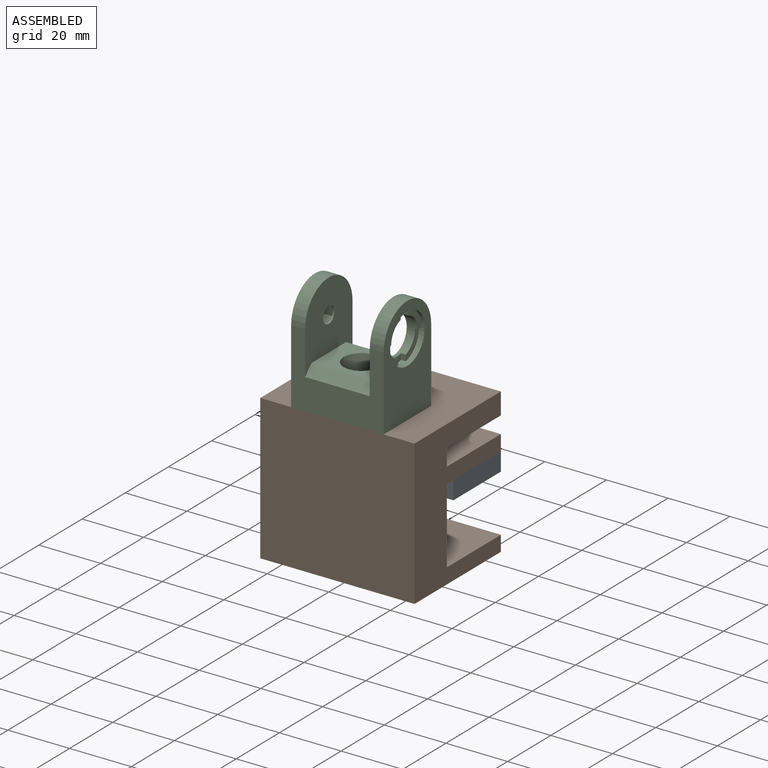
[diagram: assembled view]
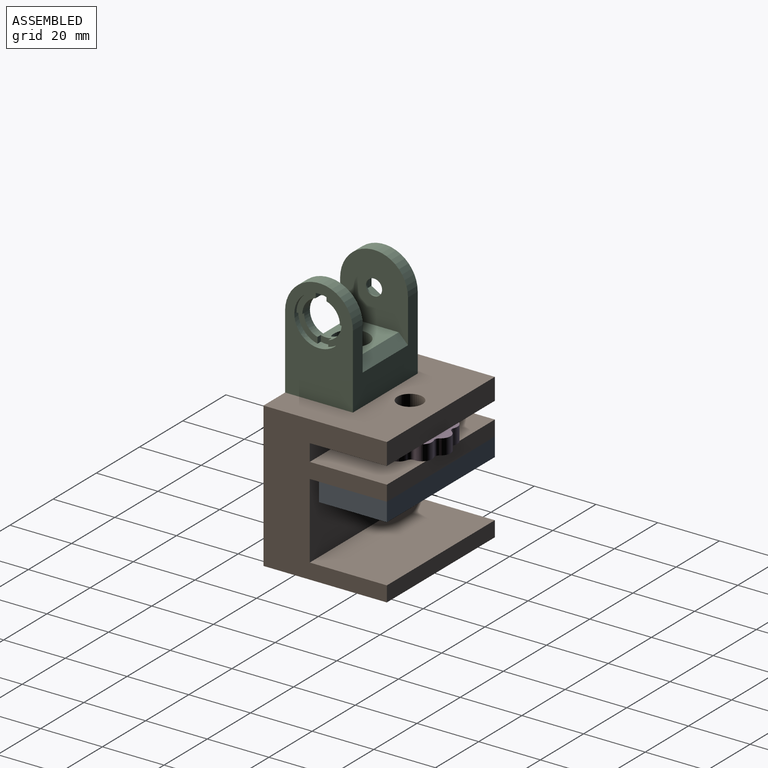
[diagram: assembled view, second angle]
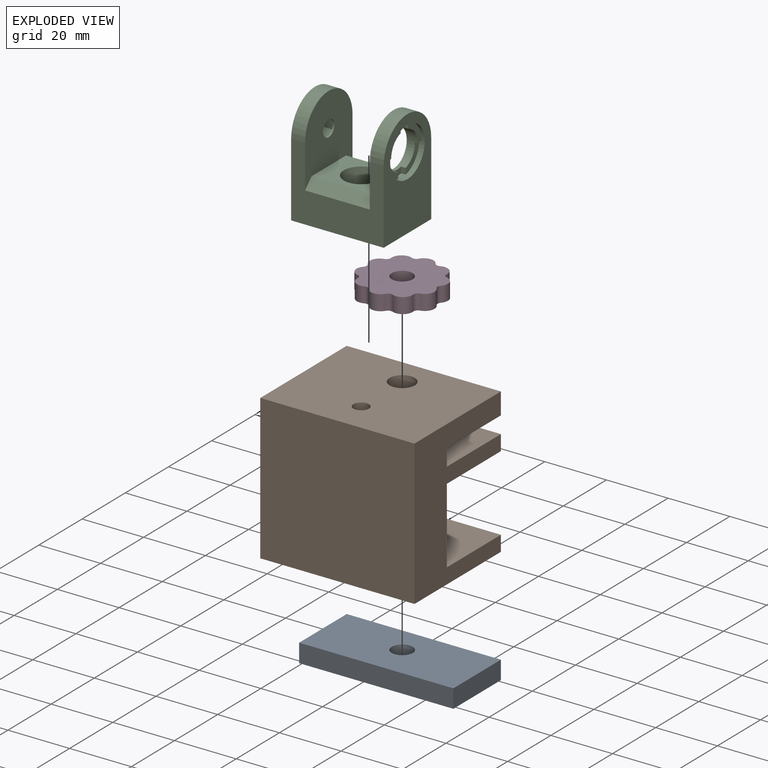
[diagram: exploded view]
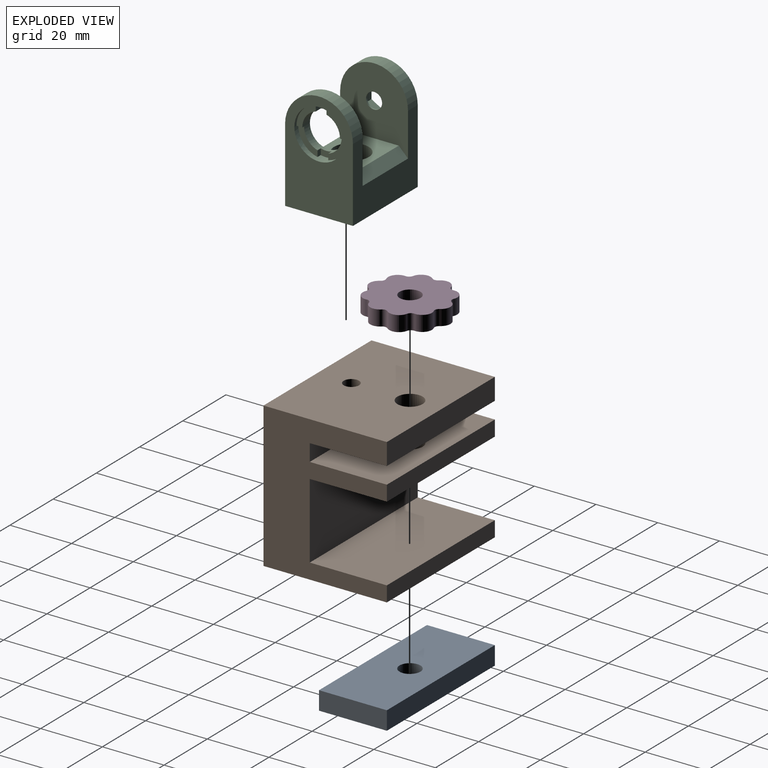
[diagram: exploded view, second angle]
ASSEMBLY  parts=4 mates=3
PART A: 8 faces, bbox 50x22x6 mm
  f0: plane 50x6mm, normal (0,1,0), area 300mm2, adj f1,f3,f4,f5
  f1: plane 22x6mm, normal (-1,0,0), area 132mm2, adj f0,f2,f4,f5
  f2: plane 50x6mm, normal (0,-1,0), area 300mm2, adj f1,f3,f4,f5
  f3: plane 22x6mm, normal (1,0,0), area 132mm2, adj f0,f2,f4,f5
  f4: plane 50x22mm, normal (0,0,1), area 1063.7mm2, adj f0,f1,f2,f3,f7
  f5: plane 50x22mm, normal (0,0,-1), area 1100mm2, adj f0,f1,f2,f3
  f6: cone r=0mm half-angle=59deg, axis (0,0,1), area 42.4mm2, adj f7
  f7: cylinder r=3.4mm len=6.8mm, axis (0,0,1), area 74.8mm2, adj f4,f6
PART B: 18 faces, bbox 50x40x47 mm
  f0: plane 50x5.5mm, normal (0,1,0), area 275mm2, adj f2,f4,f6,f10
  f1: plane 50x25mm, normal (0,0,1), area 1250mm2, adj f3,f4,f6,f9
  f2: plane 50x25mm, normal (0,0,-1), area 1197.2mm2, adj f0,f4,f6,f8,f14
  f3: plane 50x5mm, normal (0,1,0), area 250mm2, adj f1,f4,f6,f7
  f4: plane 47x40mm, normal (-1,0,0), area 1130mm2, adj f0,f1,f2,f3,f5,f7,f8,f9
  f5: plane 50x47mm, normal (0,-1,0), area 2350mm2, adj f4,f6,f7,f15
  f6: plane 47x40mm, normal (1,0,0), area 1130mm2, adj f0,f1,f2,f3,f5,f7,f8,f9
  f7: plane 50x40mm, normal (0,0,-1), area 2000mm2, adj f3,f4,f5,f6
  f8: plane 50x7mm, normal (0,1,0), area 350mm2, adj f2,f4,f6,f15
  f9: plane 50x24.5mm, normal (0,1,0), area 1225mm2, adj f1,f4,f6,f11
  f10: plane 50x25mm, normal (0,0,1), area 1197.2mm2, adj f0,f4,f6,f12,f13
  f11: plane 50x25mm, normal (0,0,-1), area 1197.2mm2, adj f4,f6,f9,f12,f13
  f12: plane 50x5mm, normal (0,1,0), area 250mm2, adj f4,f6,f10,f11
  f13: cylinder r=4.1mm len=8.2mm, axis (0,0,1), area 128.8mm2, adj f10,f11
  f14: cylinder r=4.1mm len=8.2mm, axis (0,0,1), area 180.3mm2, adj f2,f15
  f15: plane 50x40mm, normal (0,0,1), area 1927.6mm2, adj f4,f5,f6,f8,f14,f17
  f16: cone r=0mm half-angle=59deg, axis (0,0,1), area 22.9mm2, adj f17
  f17: cylinder r=2.5mm len=18.5mm, axis (0,0,1), area 290.6mm2, adj f15,f16
PART C: 37 faces, bbox 30x22x35 mm
  f0: plane 30x24mm, normal (0,1,0), area 426mm2, adj f4,f5,f16,f17,f19,f30,f35,f36
  f1: cylinder r=6.1mm len=12.2mm, axis (1,0,0), area 105.3mm2, adj f2,f3,f10,f11,f12,f13,f14,f15
  f2: plane 7.81x6.25mm, normal (1,0,0), area 17.7mm2, adj f1,f9,f11,f33
  f3: plane 7.81x6.25mm, normal (1,0,0), area 17.7mm2, adj f1,f9,f10,f31
  f4: plane 35x22mm, normal (-1,0,0), area 662.6mm2, adj f0,f7,f17,f20,f21,f22,f23,f24
  f5: plane 35x22mm, normal (1,0,0), area 517mm2, adj f0,f7,f9,f16,f30
  f6: cylinder r=2.6mm len=5.2mm, axis (-1,0,0), area 8.2mm2, adj f26,f36
  f7: plane 30x24mm, normal (0,-1,0), area 426mm2, adj f4,f5,f16,f17,f18,f30,f35,f36
  f8: plane 21x16mm, normal (0,0,1), area 236.6mm2, adj f18,f19,f29,f35,f36
  f9: cylinder r=8mm len=16mm, axis (1,0,0), area 83.8mm2, adj f2,f3,f5,f10,f11,f12,f13,f14
  f10: plane 2.3x1.96mm, normal (0,1,0), area 4.5mm2, adj f1,f3,f9,f12
  f11: plane 2.3x1.96mm, normal (0,-1,0), area 4.5mm2, adj f1,f2,f9,f12
  f12: plane 3.5x2.16mm, normal (1,0,0), area 6.7mm2, adj f1,f9,f10,f11
  f13: plane 1.96x1.5mm, normal (0,1,0), area 2.9mm2, adj f1,f9,f15,f32
  f14: plane 1.96x1.5mm, normal (0,-1,0), area 2.9mm2, adj f1,f9,f15,f34
  f15: plane 3.5x2.16mm, normal (1,0,0), area 6.7mm2, adj f1,f9,f13,f14
  f16: cylinder r=11mm len=22mm, axis (1,0,0), area 155.5mm2, adj f0,f5,f7,f35
  f17: cylinder r=11mm len=22mm, axis (1,0,0), area 155.5mm2, adj f0,f4,f7,f36
  f18: plane 21x3mm, normal (0,-0.71,0.71), area 89.1mm2, adj f7,f8,f35,f36
  f19: plane 21x3mm, normal (0,0.71,0.71), area 89.1mm2, adj f0,f8,f35,f36
  f20: plane 4x4mm, normal (0,-0.5,-0.87), area 18.5mm2, adj f4,f21,f25,f26
  f21: plane 4.62x4mm, normal (0,-1,0), area 18.5mm2, adj f4,f20,f22,f26
  f22: plane 4x4mm, normal (0,-0.5,0.87), area 18.5mm2, adj f4,f21,f23,f26
  f23: plane 4x4mm, normal (0,0.5,0.87), area 18.5mm2, adj f4,f22,f24,f26
  f24: plane 4.62x4mm, normal (0,1,0), area 18.5mm2, adj f4,f23,f25,f26
  f25: plane 4x4mm, normal (0,0.5,-0.87), area 18.5mm2, adj f4,f20,f24,f26
  f26: plane 9.24x8mm, normal (-1,0,0), area 34.2mm2, adj f6,f20,f21,f22,f23,f24,f25
  f27: cylinder r=3.25mm len=7mm, axis (0,0,1), area 142.9mm2, adj f28,f30
  f28: plane 11.25x11.25mm, normal (0,0,1), area 66.2mm2, adj f27,f29
  f29: cylinder r=5.62mm len=11.25mm, axis (0,0,1), area 212.1mm2, adj f8,f28
  f30: plane 30x22mm, normal (0,0,-1), area 626.8mm2, adj f0,f4,f5,f7,f27
  f31: plane 1.9x0.8mm, normal (0,0,-1), area 1.5mm2, adj f1,f3,f9,f32
  f32: plane 7.81x6.25mm, normal (1,0,0), area 17.7mm2, adj f1,f9,f13,f31
  f33: plane 1.9x0.8mm, normal (0,0,-1), area 1.5mm2, adj f1,f2,f9,f34
  f34: plane 7.81x6.25mm, normal (1,0,0), area 17.7mm2, adj f1,f9,f14,f33
  f35: plane 25x22mm, normal (-1,0,0), area 324.2mm2, adj f0,f1,f7,f8,f16,f18,f19
  f36: plane 25x22mm, normal (1,0,0), area 419.8mm2, adj f0,f6,f7,f8,f17,f18,f19
PART D: 23 faces, bbox 25.3x26.3x5 mm
  f0: cylinder r=3.14mm len=5mm, axis (0,0,-1), area 32.7mm2, adj f10,f11,f12,f21
  f1: cylinder r=3.14mm len=5.43mm, axis (0,0,-1), area 32.7mm2, adj f10,f11,f12,f13
  f2: cylinder r=3.14mm len=5mm, axis (0,0,-1), area 32.7mm2, adj f10,f11,f13,f14
  f3: cylinder r=3.14mm len=5.16mm, axis (0,0,-1), area 32.7mm2, adj f10,f11,f14,f15
  f4: cylinder r=3.14mm len=5.16mm, axis (0,0,-1), area 32.7mm2, adj f10,f11,f15,f16
  f5: cylinder r=3.14mm len=5mm, axis (0,0,-1), area 32.7mm2, adj f10,f11,f16,f17
  f6: cylinder r=3.14mm len=5.43mm, axis (0,0,-1), area 32.7mm2, adj f10,f11,f17,f18
  f7: cylinder r=3.14mm len=5mm, axis (0,0,-1), area 32.7mm2, adj f10,f11,f18,f19
  f8: cylinder r=3.14mm len=5.16mm, axis (0,0,-1), area 32.7mm2, adj f10,f11,f19,f20
  f9: cylinder r=3.14mm len=5.16mm, axis (0,0,-1), area 32.7mm2, adj f10,f11,f20,f21
  f10: plane 26.28x25.3mm, normal (0,0,1), area 451mm2, adj f0,f1,f2,f3,f4,f5,f6,f7
  f11: plane 26.28x25.3mm, normal (0,0,-1), area 451mm2, adj f0,f1,f2,f3,f4,f5,f6,f7
  f12: cylinder r=1.5mm len=5mm, axis (0,0,1), area 10.9mm2, adj f0,f1,f10,f11
  f13: cylinder r=1.5mm len=5mm, axis (0,0,1), area 10.9mm2, adj f1,f2,f10,f11
  f14: cylinder r=1.5mm len=5mm, axis (0,0,1), area 10.9mm2, adj f2,f3,f10,f11
  f15: cylinder r=1.5mm len=5mm, axis (0,0,1), area 10.9mm2, adj f3,f4,f10,f11
  f16: cylinder r=1.5mm len=5mm, axis (0,0,1), area 10.9mm2, adj f4,f5,f10,f11
  f17: cylinder r=1.5mm len=5mm, axis (0,0,1), area 10.9mm2, adj f5,f6,f10,f11
  f18: cylinder r=1.5mm len=5mm, axis (0,0,1), area 10.9mm2, adj f6,f7,f10,f11
  f19: cylinder r=1.5mm len=5mm, axis (0,0,1), area 10.9mm2, adj f7,f8,f10,f11
  f20: cylinder r=1.5mm len=5mm, axis (0,0,1), area 10.9mm2, adj f8,f9,f10,f11
  f21: cylinder r=1.5mm len=5mm, axis (0,0,1), area 10.9mm2, adj f0,f9,f10,f11
  f22: cylinder r=3.4mm len=6.8mm, axis (0,0,1), area 106.8mm2, adj f10,f11
PLACE A t=(-13.82,7.06,12.57)mm
PLACE B t=(-13.82,-1.94,-10.93)mm fixed
PLACE C t=(-13.82,-1.94,36.07)mm
PLACE D t=(-13.82,8.06,24.07)mm
MATE fastened A.f6 <-> B.f13  axis (0,0,1) through (-13.82,8.06,18.57)mm
MATE revolute D.f22 <-> B.f13  axis (0,0,1) through (-13.82,8.06,29.07)mm
MATE revolute B.f16 <-> C.f27  axis (0,0,1) through (-13.82,-10.94,36.07)mm
